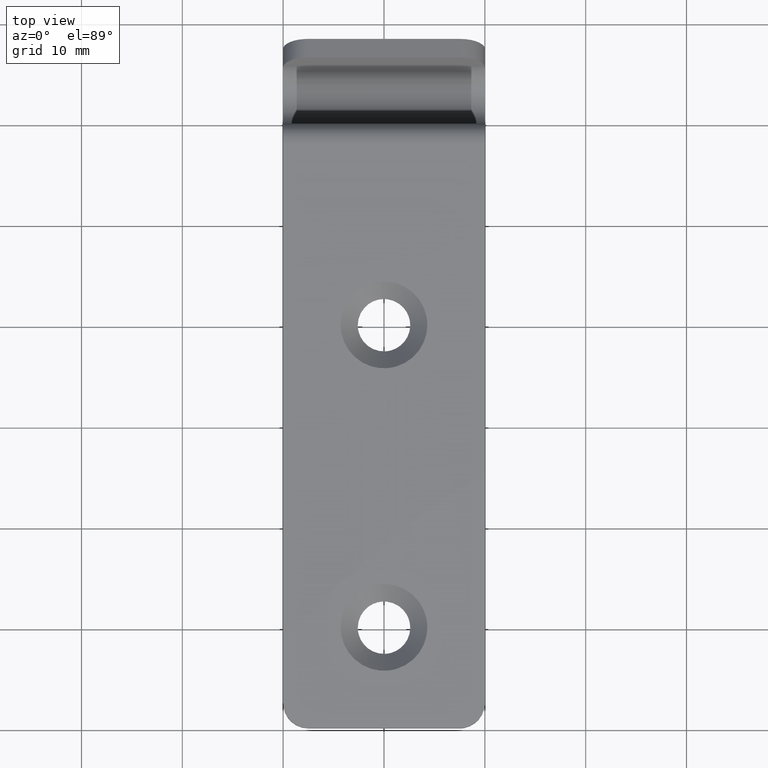
[diagram: clean part render]
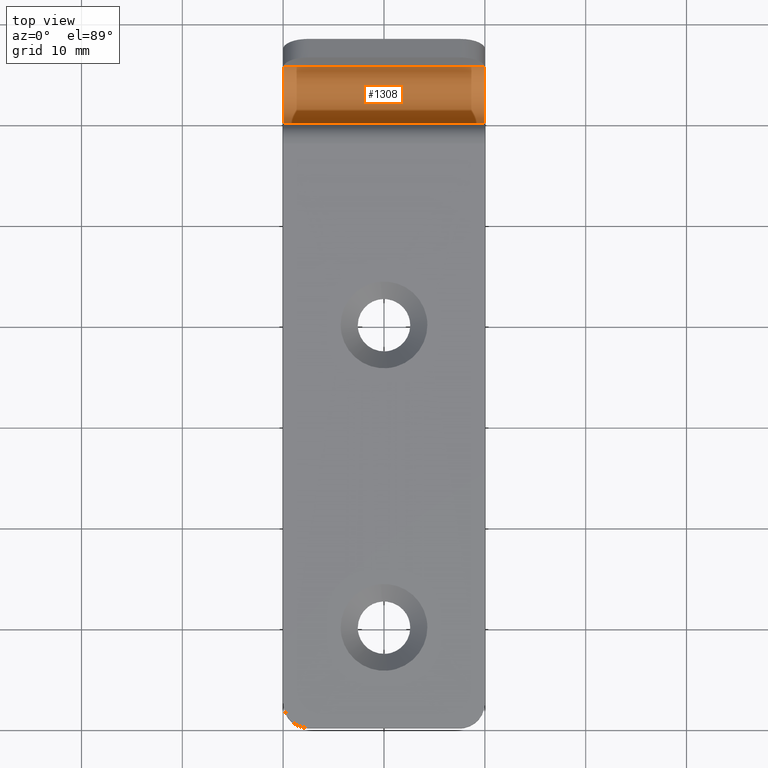
[diagram: same view with one face highlighted and labeled with its STEP entity id]
A machine part, top view. The second image highlights one B-rep face of the part: STEP entity #1308.
In plain terms, the highlighted face is a freeform B-spline surface patch.
Its self-contained STEP definition (entity closure, byte-faithful):
#860=CARTESIAN_POINT('',(9.992339627834411,65.777711817728303,-9.133460894230652));
#861=VERTEX_POINT('',#860);
#875=CARTESIAN_POINT('',(10.0,65.697882677600390,-9.312097841692220));
#876=VERTEX_POINT('',#875);
#877=CARTESIAN_POINT('',(10.0,65.697882677600390,-9.312097841692230));
#878=CARTESIAN_POINT('',(10.0,65.726478998880566,-9.253330468078982));
#879=CARTESIAN_POINT('',(9.997451968187709,65.753082836633681,-9.193781960569877));
#880=CARTESIAN_POINT('',(9.992339627834280,65.777711817728303,-9.133460894230652));
#881=QUASI_UNIFORM_CURVE('',3,(#877,#878,#879,#880),.UNSPECIFIED.,.F.,.U.);
#882=EDGE_CURVE('',#876,#861,#881,.T.);
#926=CARTESIAN_POINT('',(-10.0,65.697882677600390,-9.312097841692220));
#927=VERTEX_POINT('',#926);
#933=CARTESIAN_POINT('',(-9.992339627834340,65.777711817728303,-9.133460894230652));
#934=VERTEX_POINT('',#933);
#935=CARTESIAN_POINT('',(-9.992339627834340,65.777711817728303,-9.133460894230652));
#936=CARTESIAN_POINT('',(-9.997451968187768,65.753082836633681,-9.193781960569879));
#937=CARTESIAN_POINT('',(-10.0,65.726478998880566,-9.253330468078971));
#938=CARTESIAN_POINT('',(-10.0,65.697882677600390,-9.312097841692220));
#939=QUASI_UNIFORM_CURVE('',3,(#935,#936,#937,#938),.UNSPECIFIED.,.F.,.U.);
#940=EDGE_CURVE('',#934,#927,#939,.T.);
#1015=CARTESIAN_POINT('',(-10.0,60.000300000000003,-7.999448727301539));
#1016=VERTEX_POINT('',#1015);
#1022=CARTESIAN_POINT('',(-10.0,65.697882677600333,-9.312097841692191));
#1023=CARTESIAN_POINT('',(-10.0,64.653264761263472,-11.458858285841346));
#1024=CARTESIAN_POINT('',(-10.0,62.326782380631741,-10.922866934879870));
#1025=CARTESIAN_POINT('',(-10.0,60.000299999999996,-10.386875583918394));
#1026=CARTESIAN_POINT('',(-10.0,60.000300000000003,-7.999448727301539));
#1034=(BOUNDED_CURVE()B_SPLINE_CURVE(2,(#1022,#1023,#1024,#1025,#1026),.UNSPECIFIED.,.F.,.U.)B_SPLINE_CURVE_WITH_KNOTS((3,2,3),(0.0,0.500000000000000,1.0),.UNSPECIFIED.)CURVE()GEOMETRIC_REPRESENTATION_ITEM()RATIONAL_B_SPLINE_CURVE((1.0,0.782465933163468,1.0,0.782465933163468,1.0))REPRESENTATION_ITEM(''));
#1035=EDGE_CURVE('',#927,#1016,#1034,.T.);
#1106=CARTESIAN_POINT('',(10.0,60.000300000000003,-7.999448727301539));
#1107=VERTEX_POINT('',#1106);
#1108=CARTESIAN_POINT('',(10.0,65.697882677600333,-9.312097841692191));
#1109=CARTESIAN_POINT('',(10.0,64.653264761263472,-11.458858285841346));
#1110=CARTESIAN_POINT('',(10.0,62.326782380631741,-10.922866934879870));
#1111=CARTESIAN_POINT('',(10.0,60.000299999999996,-10.386875583918394));
#1112=CARTESIAN_POINT('',(10.0,60.000300000000003,-7.999448727301539));
#1120=(BOUNDED_CURVE()B_SPLINE_CURVE(2,(#1108,#1109,#1110,#1111,#1112),.UNSPECIFIED.,.F.,.U.)B_SPLINE_CURVE_WITH_KNOTS((3,2,3),(0.0,0.500000000000000,1.0),.UNSPECIFIED.)CURVE()GEOMETRIC_REPRESENTATION_ITEM()RATIONAL_B_SPLINE_CURVE((1.0,0.782465933163468,1.0,0.782465933163468,1.0))REPRESENTATION_ITEM(''));
#1121=EDGE_CURVE('',#876,#1107,#1120,.T.);
#1270=CARTESIAN_POINT('',(10.0,60.000300000000003,-7.999448727301539));
#1271=CARTESIAN_POINT('',(-10.0,60.000300000000003,-7.999448727301539));
#1272=QUASI_UNIFORM_CURVE('',1,(#1270,#1271),.UNSPECIFIED.,.F.,.U.);
#1273=EDGE_CURVE('',#1107,#1016,#1272,.T.);
#1278=CARTESIAN_POINT('',(10.500000000000000,60.001636160947463,-7.909921187635456));
#1279=CARTESIAN_POINT('',(-10.512499999999999,60.001636160947463,-7.909921187635456));
#1280=CARTESIAN_POINT('',(10.500000000000002,59.923811058046411,-10.516619894092932));
#1281=CARTESIAN_POINT('',(-10.512500000000001,59.923811058046411,-10.516619894092932));
#1282=CARTESIAN_POINT('',(10.500000000000000,62.494310390977923,-10.956469950688639));
#1283=CARTESIAN_POINT('',(-10.512499999999999,62.494310390977923,-10.956469950688639));
#1284=CARTESIAN_POINT('',(10.500000000000002,65.064809723909448,-11.396320007284347));
#1285=CARTESIAN_POINT('',(-10.512500000000001,65.064809723909448,-11.396320007284347));
#1286=CARTESIAN_POINT('',(10.500000000000000,65.858123553170202,-8.912051893494642));
#1287=CARTESIAN_POINT('',(-10.512499999999999,65.858123553170202,-8.912051893494642));
#1295=(BOUNDED_SURFACE()B_SPLINE_SURFACE(1,2,((#1278,#1280,#1282,#1284,#1286),(#1279,#1281,#1283,#1285,#1287)),.UNSPECIFIED.,.F.,.F.,.U.)B_SPLINE_SURFACE_WITH_KNOTS((2,2),(3,2,3),(0.0,21.012499999999999),(0.0,4.486616153817672,8.973232307635344),.UNSPECIFIED.)GEOMETRIC_REPRESENTATION_ITEM()RATIONAL_B_SPLINE_SURFACE(((1.0,0.754709580222772,1.0,0.754709580222772,1.0),(1.0,0.754709580222772,1.0,0.754709580222772,1.0)))REPRESENTATION_ITEM('')SURFACE());
#1296=CARTESIAN_POINT('',(9.992339627834411,65.777711817728303,-9.133460894230652));
#1297=CARTESIAN_POINT('',(-9.992339627834340,65.777711817728303,-9.133460894230652));
#1298=QUASI_UNIFORM_CURVE('',1,(#1296,#1297),.UNSPECIFIED.,.F.,.U.);
#1299=EDGE_CURVE('',#861,#934,#1298,.T.);
#1300=ORIENTED_EDGE('',*,*,#1299,.T.);
#1301=ORIENTED_EDGE('',*,*,#940,.T.);
#1302=ORIENTED_EDGE('',*,*,#1035,.T.);
#1303=ORIENTED_EDGE('',*,*,#1273,.F.);
#1304=ORIENTED_EDGE('',*,*,#1121,.F.);
#1305=ORIENTED_EDGE('',*,*,#882,.T.);
#1306=EDGE_LOOP('',(#1300,#1301,#1302,#1303,#1304,#1305));
#1307=FACE_OUTER_BOUND('',#1306,.T.);
#1308=ADVANCED_FACE('',(#1307),#1295,.F.);